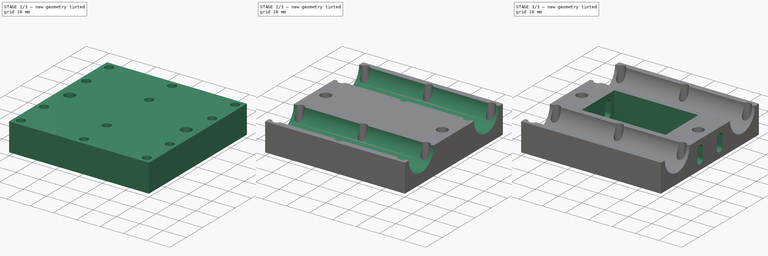
[diagram: build sequence overview — one tinted view per stage of 3, left to right]
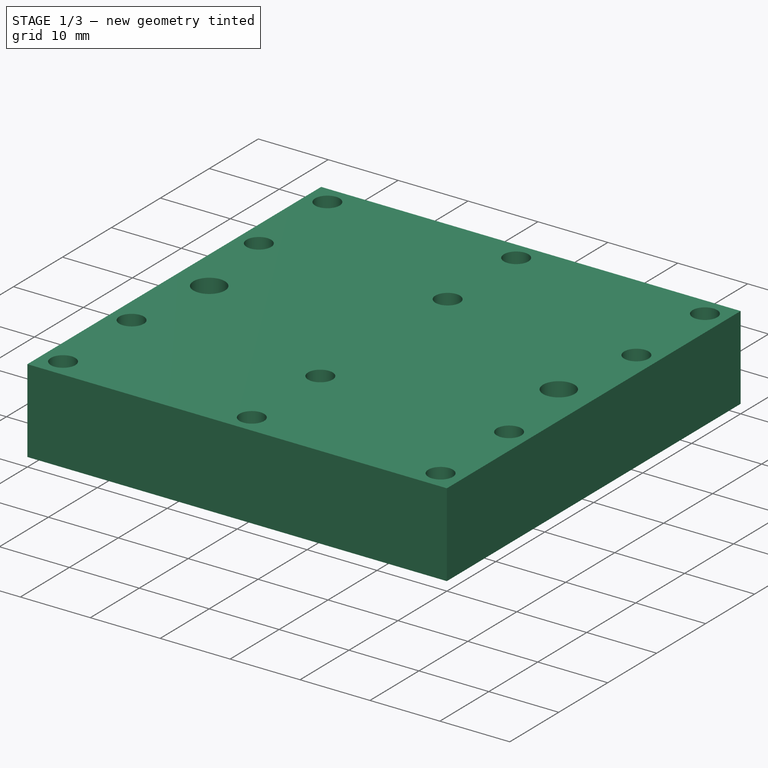
[diagram: stage 1 of 3 — iso view after this stage's code; geometry added in this stage tinted green]
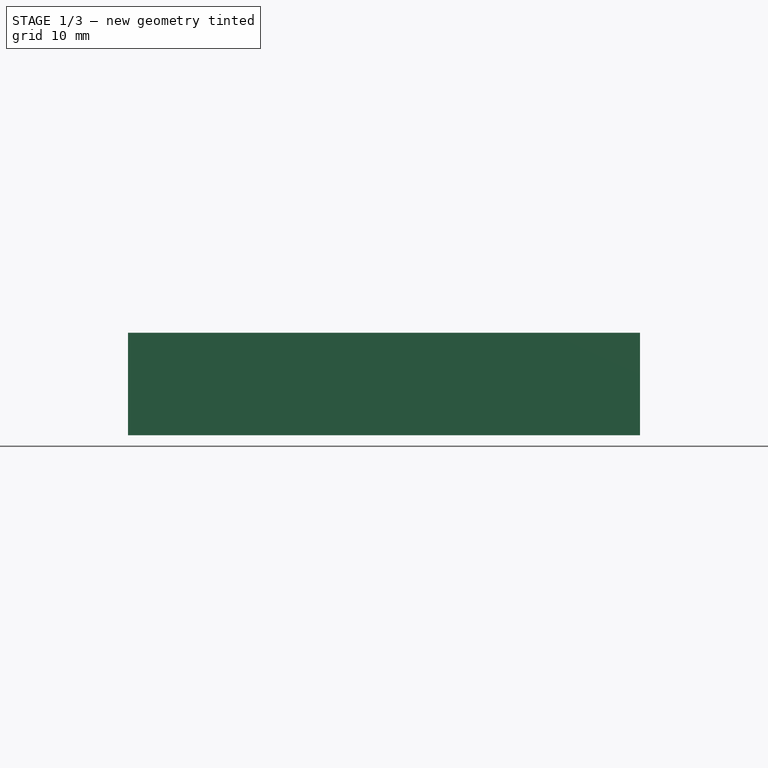
[diagram: stage 1 of 3 — front view after this stage's code; geometry added in this stage tinted green]
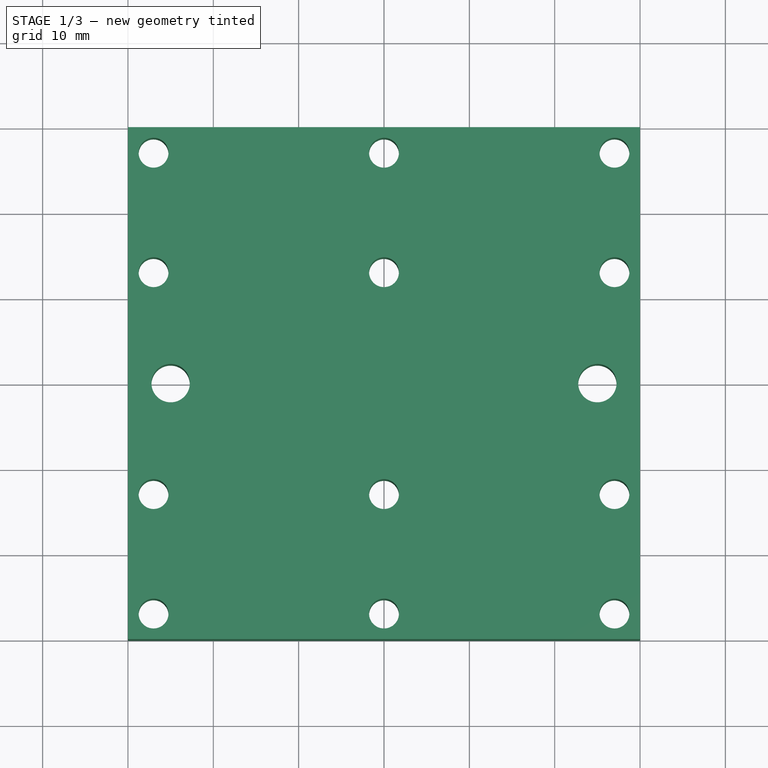
[diagram: stage 1 of 3 — top view after this stage's code; geometry added in this stage tinted green]
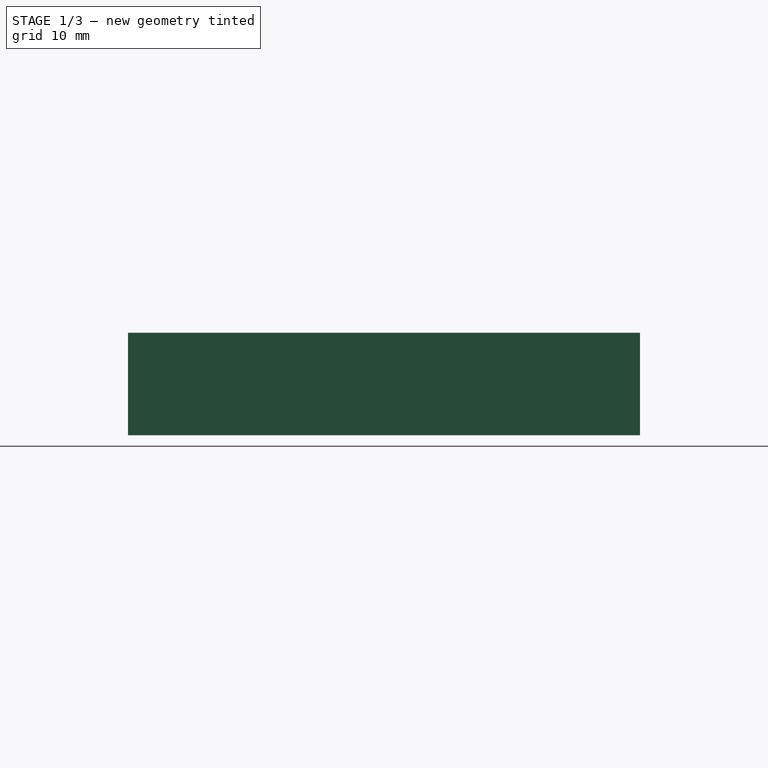
[diagram: stage 1 of 3 — right view after this stage's code; geometry added in this stage tinted green]
FCSTD DOCUMENT
Label: carriage
objects: Sketcher::SketchObject×5, PartDesign::Pocket×4, PartDesign::Pad×1
note: 15 computed .brp shape members not serialized (recipe doc carries the construction recipe); baked Part::Feature solids carry a one-line shape summary decoded from their .brp

FEATURE [Sketcher::SketchObject] Sketch
  sketch-geometry (4):
    g0: LineSegment StartX=-30 StartY=-30 StartZ=0 EndX=30 EndY=-30 EndZ=0
    g1: LineSegment StartX=30 StartY=-30 StartZ=0 EndX=30 EndY=30 EndZ=0
    g2: LineSegment StartX=30 StartY=30 StartZ=0 EndX=-30 EndY=30 EndZ=0
    g3: LineSegment StartX=-30 StartY=30 StartZ=0 EndX=-30 EndY=-30 EndZ=0
  constraints (12):
    c: Coincident(g0,g1)
    c: Coincident(g1,g2)
    c: Coincident(g2,g3)
    c: Coincident(g3,g0)
    c: Horizontal(g0)
    c: Horizontal(g2)
    c: Vertical(g1)
    c: Vertical(g3)
    c: Distance(g1) = 60
    c: Distance(g0) = 60
    c: DistanceY(g-1,g0) = -30
    c: DistanceX(g-1,g0) = -30
FEATURE [PartDesign::Pad] Pad
  Length = 12
  Length2 = 100
  Sketch = -> Sketch
  Type = 0
FEATURE [Sketcher::SketchObject] Sketch001
  Placement = pos=(0,0,0) rot=(1,0,0;3.14159rad)
  Support = -> Pad [Face5]
  sketch-geometry (14):
    g0: Circle CenterX=-27 CenterY=27 CenterZ=0 NormalX=0 NormalY=0 NormalZ=1 Radius=1.75
    g1: Circle CenterX=27 CenterY=27 CenterZ=0 NormalX=0 NormalY=0 NormalZ=1 Radius=1.75
    g2: Circle CenterX=-27 CenterY=13 CenterZ=0 NormalX=0 NormalY=0 NormalZ=1 Radius=1.75
    g3: Circle CenterX=27 CenterY=13 CenterZ=0 NormalX=0 NormalY=0 NormalZ=1 Radius=1.75
    g4: Circle CenterX=-27 CenterY=-13 CenterZ=0 NormalX=0 NormalY=0 NormalZ=1 Radius=1.75
    g5: Circle CenterX=-27 CenterY=-27 CenterZ=0 NormalX=0 NormalY=0 NormalZ=1 Radius=1.75
    g6: Circle CenterX=27 CenterY=-13 CenterZ=0 NormalX=0 NormalY=0 NormalZ=1 Radius=1.75
    g7: Circle CenterX=27 CenterY=-27 CenterZ=0 NormalX=0 NormalY=0 NormalZ=1 Radius=1.75
    g8: Circle CenterX=0 CenterY=27 CenterZ=0 NormalX=0 NormalY=0 NormalZ=1 Radius=1.75
    g9: Circle CenterX=0 CenterY=13 CenterZ=0 NormalX=0 NormalY=0 NormalZ=1 Radius=1.75
    g10: Circle CenterX=0 CenterY=-13 CenterZ=0 NormalX=0 NormalY=0 NormalZ=1 Radius=1.75
    g11: Circle CenterX=0 CenterY=-27 CenterZ=0 NormalX=0 NormalY=0 NormalZ=1 Radius=1.75
    g12: Circle CenterX=-25 CenterY=0 CenterZ=0 NormalX=0 NormalY=0 NormalZ=1 Radius=2.25
    g13: Circle CenterX=25 CenterY=0 CenterZ=0 NormalX=0 NormalY=0 NormalZ=1 Radius=2.25
  constraints (36):
    c: Equal(g0,g1)
    c: Equal(g1,g2)
    c: Equal(g2,g3)
    c: Equal(g3,g6)
    c: Equal(g6,g4)
    c: Equal(g4,g5)
    c: Equal(g5,g7)
    c: Radius(g0) = 1.75
    c: Equal(g8,g0)
    c: Equal(g9,g0)
    c: PointOnObject(g9,g-2)
    c: PointOnObject(g10,g-2)
    c: PointOnObject(g11,g-2)
    c: PointOnObject(g12,g-1)
    c: PointOnObject(g13,g-1)
    c: Symmetric(g12,g13,g-2)
    c: DistanceX(g12,g13) = 50
    c: Equal(g12,g13)
    c: Radius(g12) = 2.25
    c: Equal(g10,g0)
    c: Equal(g11,g0)
    c: Symmetric(g2,g4,g-1)
    c: Symmetric(g9,g10,g-1)
    c: Symmetric(g3,g6,g-1)
    c: Symmetric(g1,g7,g-1)
    c: Symmetric(g8,g11,g-1)
    c: Symmetric(g0,g5,g-1)
    c: DistanceX(g0,g8) = 27
    c: DistanceX(g8,g1) = 27
    c: DistanceY(g1,g3) = -14
    c: Symmetric(g0,g1,g-2)
    c: Symmetric(g2,g3,g-2)
    c: DistanceY(g9,g8) = 14
    c: DistanceY(g-1,g9) = 13
    c: DistanceY(g-1,g3) = 13
    c: DistanceX(g-1,g6) = 27
FEATURE [PartDesign::Pocket] Pocket
  Length = 5
  Sketch = -> Sketch001
  Type = 1
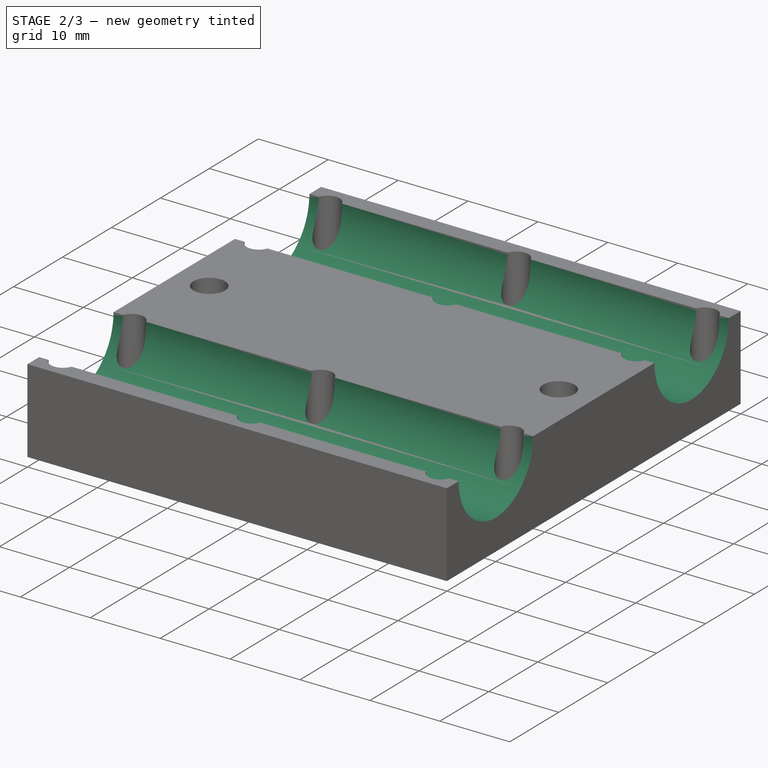
[diagram: stage 2 of 3 — iso view after this stage's code; geometry added in this stage tinted green]
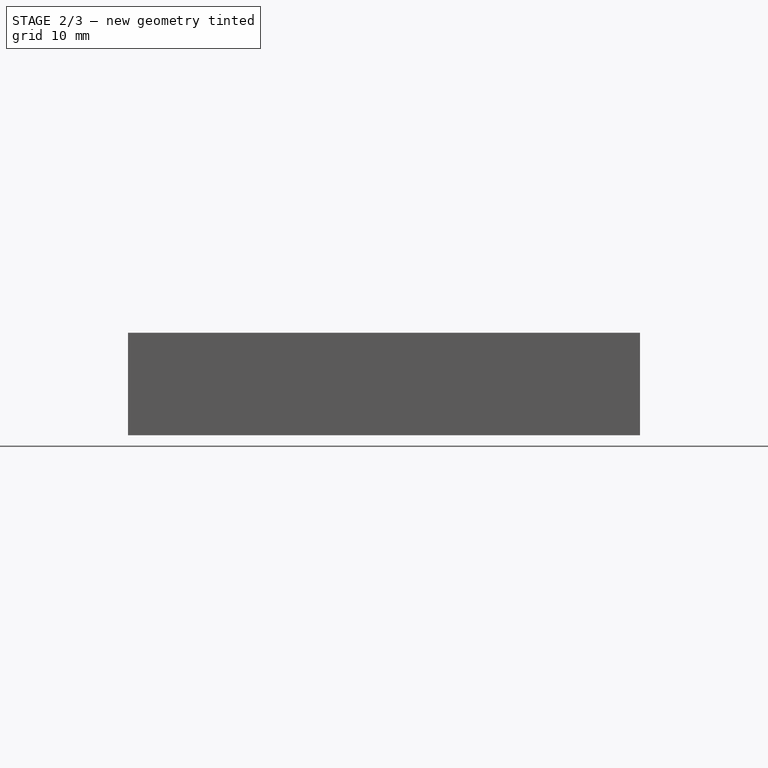
[diagram: stage 2 of 3 — front view after this stage's code; geometry added in this stage tinted green]
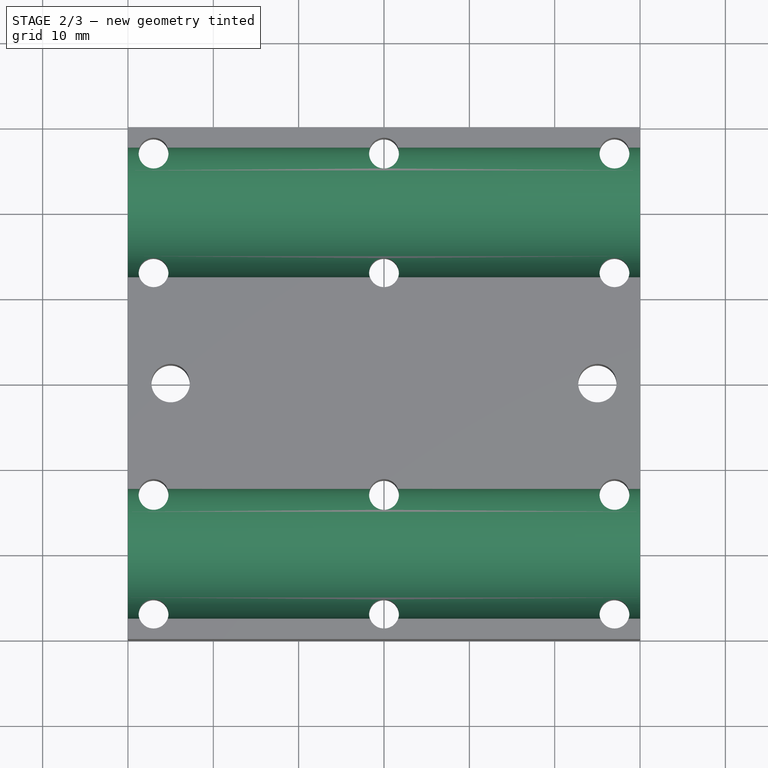
[diagram: stage 2 of 3 — top view after this stage's code; geometry added in this stage tinted green]
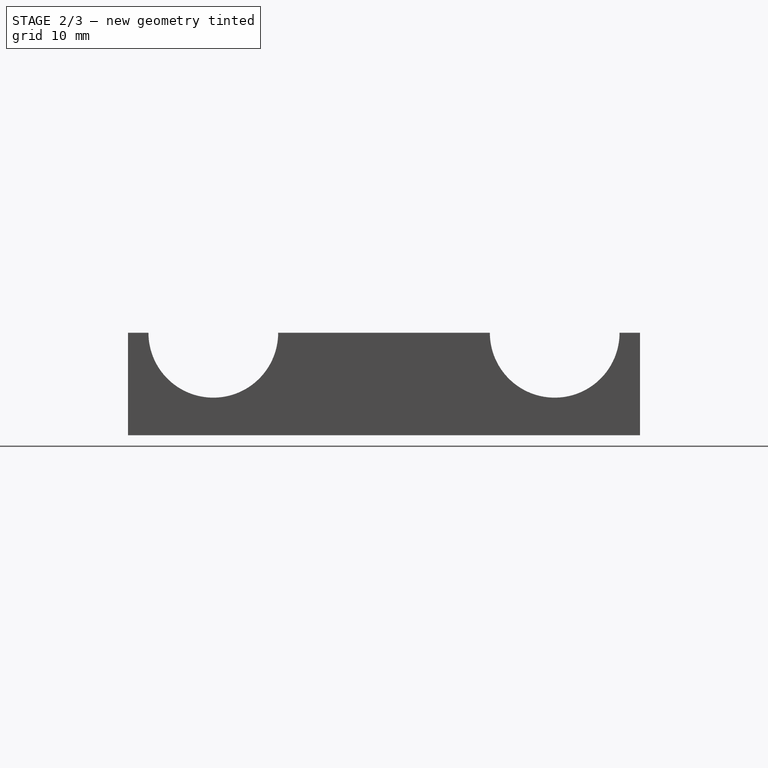
[diagram: stage 2 of 3 — right view after this stage's code; geometry added in this stage tinted green]
FEATURE [Sketcher::SketchObject] Sketch002
  Placement = pos=(-30,0,0) rot=(0.57735,-0.57735,-0.57735;2.0944rad)
  Support = -> Pocket [Face2]
  sketch-geometry (2):
    g0: Circle CenterX=-20 CenterY=12 CenterZ=0 NormalX=0 NormalY=0 NormalZ=1 Radius=7.6
    g1: Circle CenterX=20 CenterY=12 CenterZ=0 NormalX=0 NormalY=0 NormalZ=1 Radius=7.6
  constraints (5):
    c: Equal(g0,g1)
    c: Radius(g0) = 7.6
    c: Symmetric(g0,g1,g-2)
    c: Distance(g0,g1) = 40
    c: DistanceY(g0) = 12
FEATURE [PartDesign::Pocket] Pocket001
  Length = 5
  Sketch = -> Sketch002
  Type = 1
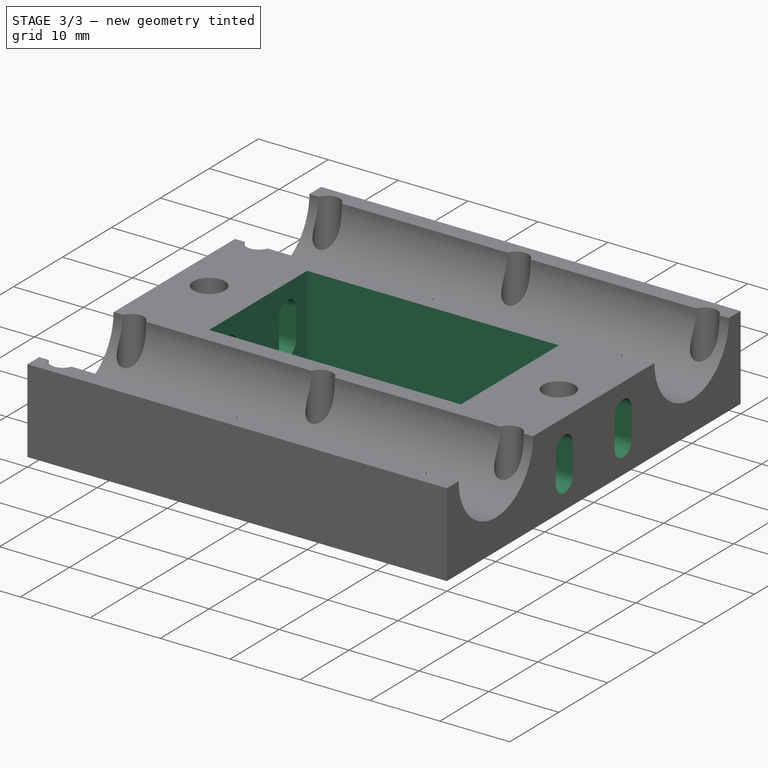
[diagram: stage 3 of 3 — iso view after this stage's code; geometry added in this stage tinted green]
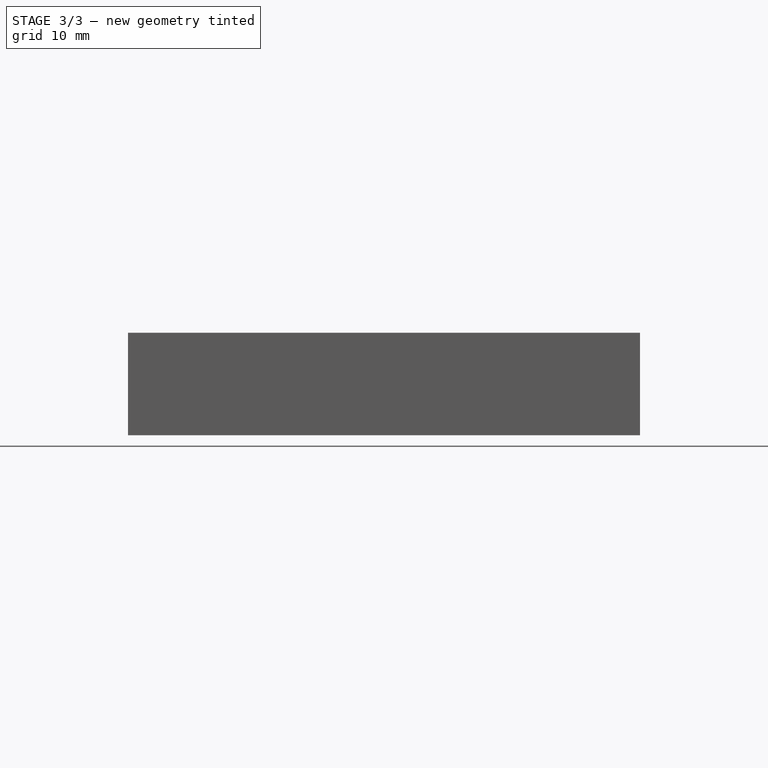
[diagram: stage 3 of 3 — front view after this stage's code; geometry added in this stage tinted green]
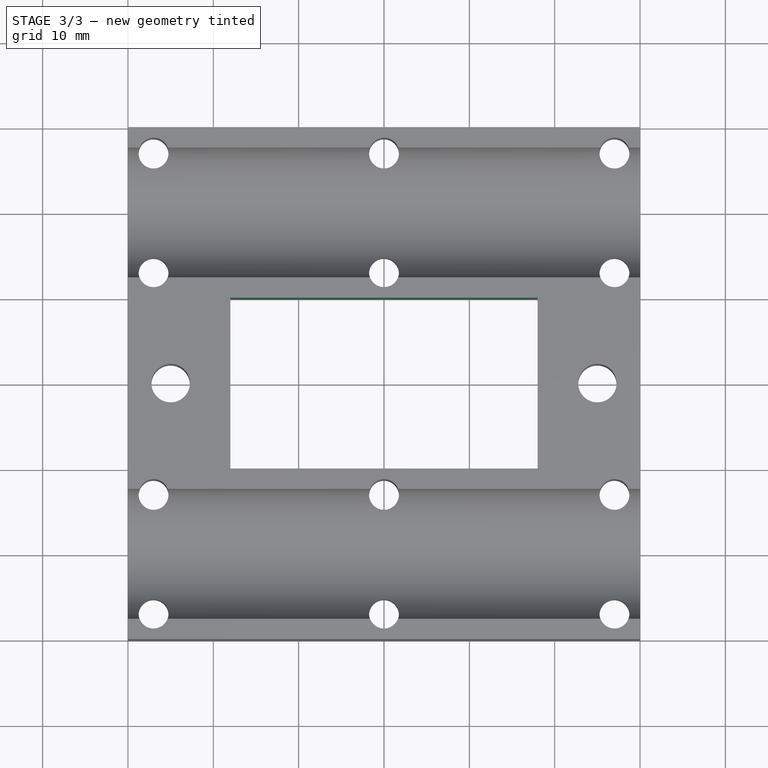
[diagram: stage 3 of 3 — top view after this stage's code; geometry added in this stage tinted green]
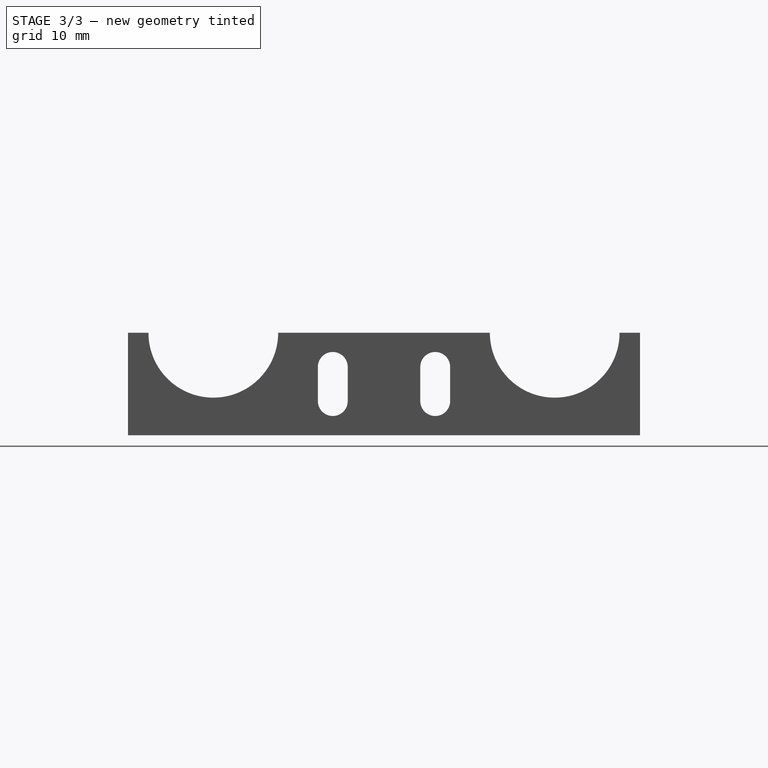
[diagram: stage 3 of 3 — right view after this stage's code; geometry added in this stage tinted green]
FEATURE [Sketcher::SketchObject] Sketch003
  Placement = pos=(0,0,12) rot=(0,0,1;0rad)
  Support = -> Pocket001 [Face7]
  sketch-geometry (4):
    g0: LineSegment StartX=-18 StartY=10 StartZ=0 EndX=18 EndY=10 EndZ=0
    g1: LineSegment StartX=18 StartY=10 StartZ=0 EndX=18 EndY=-10 EndZ=0
    g2: LineSegment StartX=18 StartY=-10 StartZ=0 EndX=-18 EndY=-10 EndZ=0
    g3: LineSegment StartX=-18 StartY=-10 StartZ=0 EndX=-18 EndY=10 EndZ=0
  constraints (12):
    c: Coincident(g0,g1)
    c: Coincident(g1,g2)
    c: Coincident(g2,g3)
    c: Coincident(g3,g0)
    c: Horizontal(g0)
    c: Horizontal(g2)
    c: Vertical(g1)
    c: Vertical(g3)
    c: DistanceY(g1) = -20
    c: Distance(g2) = 36
    c: Symmetric(g2,g0,g-1)
    c: Symmetric(g2,g1,g-2)
FEATURE [PartDesign::Pocket] Pocket002
  Length = 5
  Sketch = -> Sketch003
  Type = 1
FEATURE [Sketcher::SketchObject] Sketch004
  Placement = pos=(-30,0,0) rot=(0.57735,-0.57735,-0.57735;2.0944rad)
  Support = -> Pocket002 [Face2]
  sketch-geometry (8):
    g0: ArcOfCircle CenterX=-6 CenterY=4 CenterZ=0 NormalX=0 NormalY=0 NormalZ=1 Radius=1.74879 StartAngle=3.14159 EndAngle=6.28319
    g1: ArcOfCircle CenterX=-6 CenterY=8 CenterZ=0 NormalX=0 NormalY=0 NormalZ=1 Radius=1.74879 StartAngle=6.28318 EndAngle=9.42478
    g2: LineSegment StartX=-7.74879 StartY=4 StartZ=0 EndX=-7.74879 EndY=7.99999 EndZ=0
    g3: LineSegment StartX=-4.25121 StartY=7.99999 StartZ=0 EndX=-4.25121 EndY=4 EndZ=0
    g4: ArcOfCircle CenterX=6 CenterY=4 CenterZ=0 NormalX=0 NormalY=0 NormalZ=1 Radius=1.74879 StartAngle=3.14159 EndAngle=6.28319
    g5: ArcOfCircle CenterX=6 CenterY=8 CenterZ=0 NormalX=0 NormalY=0 NormalZ=1 Radius=1.74879 StartAngle=6.28319 EndAngle=9.42478
    g6: LineSegment StartX=4.25121 StartY=8 StartZ=0 EndX=4.25121 EndY=4 EndZ=0
    g7: LineSegment StartX=7.74879 StartY=8 StartZ=0 EndX=7.74879 EndY=4 EndZ=0
  constraints (27):
    c: Tangent(g2,g1)
    c: Coincident(g2,g1)
    c: Coincident(g0,g2)
    c: Coincident(g3,g1)
    c: Coincident(g3,g0)
    c: Tangent(g3,g1)
    c: Vertical(g2)
    c: Vertical(g3)
    c: Coincident(g6,g5)
    c: Coincident(g6,g4)
    c: Vertical(g6)
    c: Tangent(g7,g5)
    c: Coincident(g5,g7)
    c: Coincident(g7,g4)
    c: Radius(g0) = 1.74879
    c: Equal(g4,g0)
    c: Symmetric(g0,g4,g-2)
    c: Distance(g0,g4) = 12
    c: Tangent(g0,g2)
    c: Tangent(g0,g3)
    c: DistanceY(g-1,g0) = 4
    c: DistanceY(g0,g1) = 4
    c: Tangent(g4,g6)
    c: Tangent(g4,g7)
    c: Tangent(g6,g5)
    c: Vertical(g7)
    c: Symmetric(g1,g5,g-2)
FEATURE [PartDesign::Pocket] Pocket003  label="carriage"
  Length = 5
  Sketch = -> Sketch004
  Type = 1
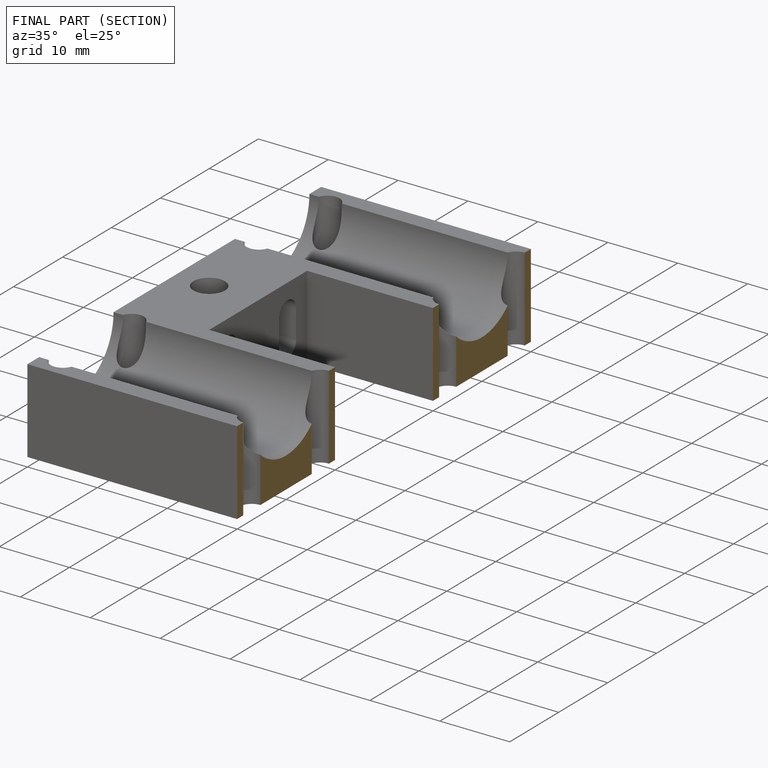
[diagram: finished part — half-section view (interior)]
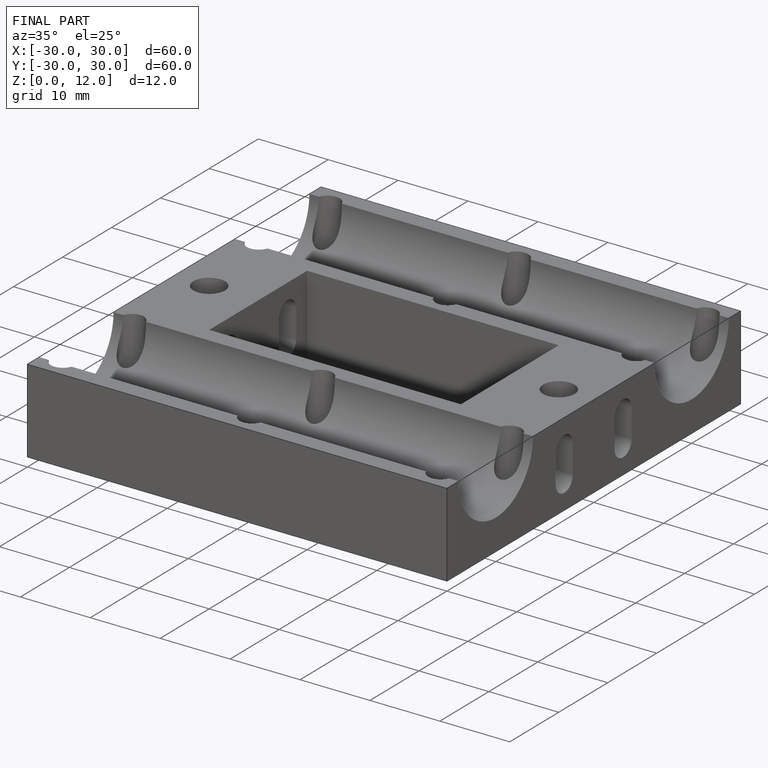
[diagram: finished part — iso view with bounding-box wireframe]
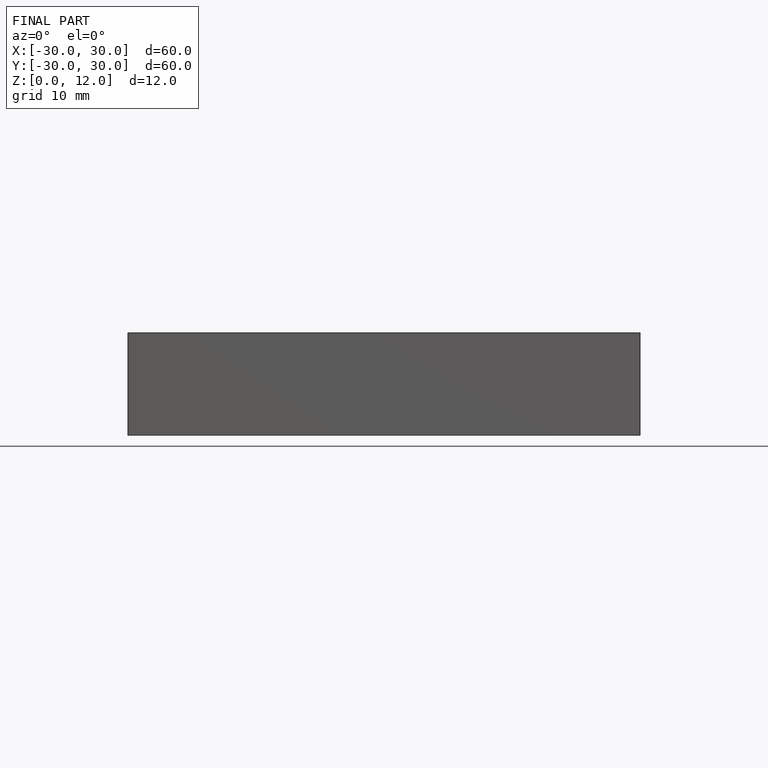
[diagram: finished part — front view with bounding-box wireframe]
